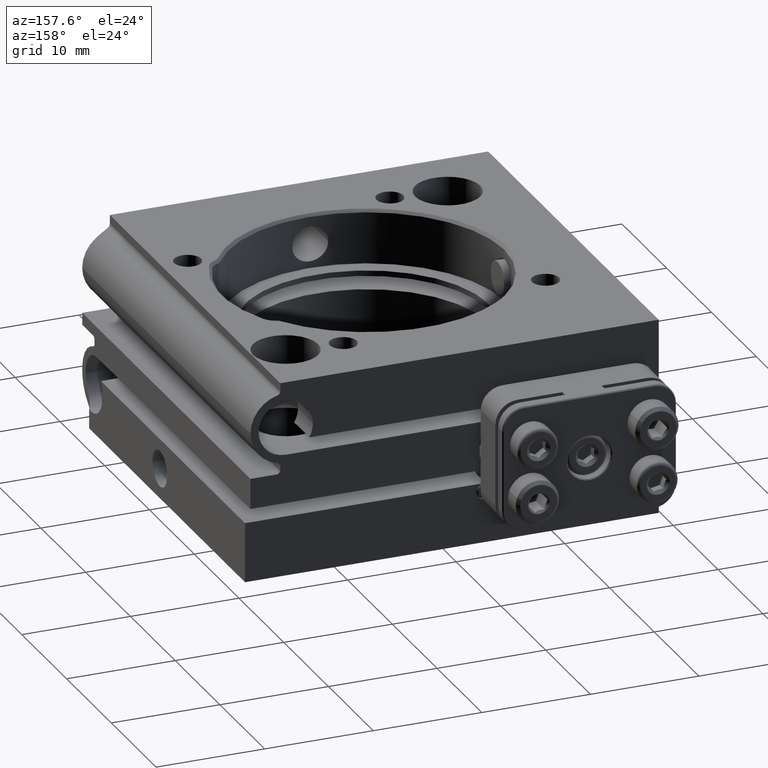
[diagram: clean part render]
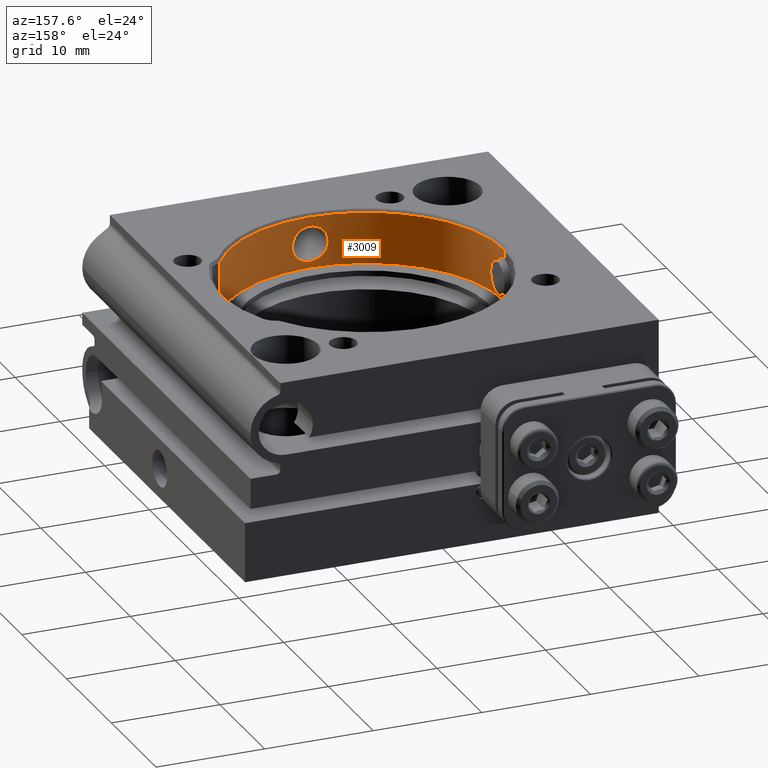
[diagram: same view with one face highlighted and labeled with its STEP entity id]
A machine part, auxiliary view. The second image highlights one B-rep face of the part: STEP entity #3009.
In plain terms, the highlighted cylindrical surface (partial cylindrical patch) has radius 12.7 mm, axis along (-0, 0, 1).
Its self-contained STEP definition (entity closure, byte-faithful):
#63 = CARTESIAN_POINT ( 'NONE',  ( 0.5311616262679677014, -12.68928159221445284, 4.684097174986618484 ) ) ;
#525 = VECTOR ( 'NONE', #8712, 1000.000000000000000 ) ;
#532 = CARTESIAN_POINT ( 'NONE',  ( 10.68890632383385864, -6.858373101567491581, 8.749999999999991118 ) ) ;
#559 = LINE ( 'NONE', #9541, #6747 ) ;
#838 = CARTESIAN_POINT ( 'NONE',  ( 1.650000000000000355, -12.59235879412590364, 6.250000000000000000 ) ) ;
#892 = CARTESIAN_POINT ( 'NONE',  ( 1.014406720461859424, -12.66034382637076661, 7.568984635073435996 ) ) ;
#917 = CARTESIAN_POINT ( 'NONE',  ( -0.7330152324979363199, -12.67922272649975390, 4.767810236534263169 ) ) ;
#948 = CARTESIAN_POINT ( 'NONE',  ( -0.5312243219149984652, -12.68927961344342492, 7.815887960319315653 ) ) ;
#967 = ORIENTED_EDGE ( 'NONE', *, *, #3142, .F. ) ;
#972 = CARTESIAN_POINT ( 'NONE',  ( -0.8276778359149603581, -12.67331870186633758, 4.818549915335562872 ) ) ;
#1154 = CARTESIAN_POINT ( 'NONE',  ( -12.65333819131141802, -1.090346758166675700, 5.006945348882484659 ) ) ;
#1158 = CARTESIAN_POINT ( 'NONE',  ( -1.649999999999994804, -12.59235879412590009, 6.357744893689425858 ) ) ;
#1223 = FACE_BOUND ( 'NONE', #4678, .T. ) ;
#1507 = CARTESIAN_POINT ( 'NONE',  ( -1.319493642687158852, -12.63219032994334157, 5.236246117921350418 ) ) ;
#1741 = B_SPLINE_CURVE_WITH_KNOTS ( 'NONE', 3,
 ( #1750, #3384, #6738, #3326, #9269, #4954, #10102, #9321, #5108, #9992, #4295, #7613, #2509, #5805 ),
 .UNSPECIFIED., .F., .F.,
 ( 4, 2, 2, 2, 2, 2, 4 ),
 ( 0.000000000000000000, 0.0003228325286193441004, 0.0006456650572386882008, 0.0009684975858580322471, 0.001291330114477376402, 0.001936995171716066012, 0.002582660228954755839 ),
 .UNSPECIFIED. ) ;
#1750 = CARTESIAN_POINT ( 'NONE',  ( -12.59235879412590364, -1.650000000000000577, 6.249999999999998224 ) ) ;
#1814 = ORIENTED_EDGE ( 'NONE', *, *, #2251, .T. ) ;
#1906 = CARTESIAN_POINT ( 'NONE',  ( -12.70000000000000639, -0.1090229725485052231, 4.600000000000000533 ) ) ;
#2013 = CARTESIAN_POINT ( 'NONE',  ( -1.565705511002873029, -12.60318627030674854, 6.781747223945730596 ) ) ;
#2044 = B_SPLINE_CURVE_WITH_KNOTS ( 'NONE', 3,
 ( #7667, #1906, #10319, #4401, #8713, #4567, #6177, #8768, #1154, #2938, #7883, #9599, #4349, #10259 ),
 .UNSPECIFIED., .F., .F.,
 ( 4, 2, 2, 2, 2, 2, 4 ),
 ( 0.007746681425112714181, 0.008069217373647116776, 0.008391753322181519370, 0.008714289270715921965, 0.009036825219250324559, 0.009681897116319131483, 0.01032696901338793667 ),
 .UNSPECIFIED. ) ;
#2218 = CIRCLE ( 'NONE', #10421, 12.69999999999999929 ) ;
#2251 = EDGE_CURVE ( 'NONE', #4929, #6469, #2044, .T. ) ;
#2353 = CARTESIAN_POINT ( 'NONE',  ( -12.69999999999999929, 1.058875209736242814E-15, 3.999999999999999112 ) ) ;
#2481 = CARTESIAN_POINT ( 'NONE',  ( 1.005068610256434125, -12.66048675011383118, 4.937003471603636839 ) ) ;
#2509 = CARTESIAN_POINT ( 'NONE',  ( -12.69999999999999929, -0.2155474377481002846, 7.899999999999997691 ) ) ;
#2591 = CARTESIAN_POINT ( 'NONE',  ( 1.606050984636598455, -12.59831351228890739, 5.814954567856689849 ) ) ;
#2646 = CARTESIAN_POINT ( 'NONE',  ( 0.7309145808882552275, -12.67934398441721378, 4.766777762420792541 ) ) ;
#2698 = LINE ( 'NONE', #7423, #2950 ) ;
#2768 = ORIENTED_EDGE ( 'NONE', *, *, #8530, .T. ) ;
#2830 = DIRECTION ( 'NONE',  ( -9.244463733058732095E-33, 5.551115123125781470E-17, 1.000000000000000000 ) ) ;
#2938 = CARTESIAN_POINT ( 'NONE',  ( -12.63231344381652477, -1.318313621317408924, 5.234759698058224053 ) ) ;
#2950 = VECTOR ( 'NONE', #3302, 1000.000000000000000 ) ;
#3009 = ADVANCED_FACE ( 'NONE', ( #1223, #3767 ), #8836, .F. ) ;
#3081 = CARTESIAN_POINT ( 'NONE',  ( -1.649999999999995248, -12.59235879412590542, 6.250000000000000000 ) ) ;
#3142 = EDGE_CURVE ( 'NONE', #7710, #9769, #2218, .T. ) ;
#3165 = DIRECTION ( 'NONE',  ( -9.244463733058732095E-33, 5.551115123125781470E-17, 1.000000000000000000 ) ) ;
#3211 = CARTESIAN_POINT ( 'NONE',  ( -12.69999999999999929, 1.143529696032970680E-15, 7.899999999999997691 ) ) ;
#3216 = DIRECTION ( 'NONE',  ( -1.000000000000000000, 5.551115123125783935E-17, 0.000000000000000000 ) ) ;
#3261 = EDGE_CURVE ( 'NONE', #6469, #5659, #1741, .T. ) ;
#3265 = ORIENTED_EDGE ( 'NONE', *, *, #8573, .T. ) ;
#3302 = DIRECTION ( 'NONE',  ( -9.244463733058732095E-33, 5.551115123125781470E-17, 1.000000000000000000 ) ) ;
#3326 = CARTESIAN_POINT ( 'NONE',  ( -12.59917469529604261, -1.597261876748875098, 6.677594368673273273 ) ) ;
#3327 = CARTESIAN_POINT ( 'NONE',  ( 1.597286510357107225, -12.59917155571188552, 6.677495938306177159 ) ) ;
#3356 = CARTESIAN_POINT ( 'NONE',  ( -1.006736397357105073, -12.66035304979194720, 4.938290515705884509 ) ) ;
#3384 = CARTESIAN_POINT ( 'NONE',  ( -12.59235879412590187, -1.650000000000000577, 6.359169316962908880 ) ) ;
#3385 = CARTESIAN_POINT ( 'NONE',  ( 0.2161003498384270471, -12.69998966641368199, 7.899920462693925671 ) ) ;
#3410 = CARTESIAN_POINT ( 'NONE',  ( 0.2151948122942981823, -12.69861548994357925, 4.610559371020976904 ) ) ;
#3454 = ORIENTED_EDGE ( 'NONE', *, *, #7546, .T. ) ;
#3463 = CARTESIAN_POINT ( 'NONE',  ( -0.2175778763345611322, -12.69857432432735500, 4.610876449858088755 ) ) ;
#3767 = FACE_OUTER_BOUND ( 'NONE', #4686, .T. ) ;
#3768 = CARTESIAN_POINT ( 'NONE',  ( 10.68890632383385864, -6.858373101567492469, 3.999999999999999112 ) ) ;
#3924 = VERTEX_POINT ( 'NONE', #8867 ) ;
#4140 = CARTESIAN_POINT ( 'NONE',  ( 1.650000000000001021, -12.59235879412590542, 6.359143648969181939 ) ) ;
#4169 = CARTESIAN_POINT ( 'NONE',  ( 1.089881095057642524, -12.65337867941391714, 5.006532768227636154 ) ) ;
#4194 = CARTESIAN_POINT ( 'NONE',  ( 0.8304684596129208174, -12.67437697549796560, 7.691876852467583348 ) ) ;
#4216 = CARTESIAN_POINT ( 'NONE',  ( -1.091517683395965443, -12.65323725961405188, 5.007963668621470354 ) ) ;
#4245 = CARTESIAN_POINT ( 'NONE',  ( -0.7311407799492911641, -12.67933158917456637, 7.733117508615616309 ) ) ;
#4295 = CARTESIAN_POINT ( 'NONE',  ( -12.67440102905318255, -0.8301179053685386888, 7.692086281326890429 ) ) ;
#4349 = CARTESIAN_POINT ( 'NONE',  ( -12.59235879412590542, -1.650000000000000355, 6.031861949611632134 ) ) ;
#4401 = CARTESIAN_POINT ( 'NONE',  ( -12.69325199066958731, -0.4271837322646028223, 4.652633860148979394 ) ) ;
#4462 = CARTESIAN_POINT ( 'NONE',  ( -1.243584559626344399, -12.63920373211304948, 7.339881464345636708 ) ) ;
#4521 = CARTESIAN_POINT ( 'NONE',  ( -1.006254112363643483, -12.66038995593008742, 7.562058369818206671 ) ) ;
#4567 = CARTESIAN_POINT ( 'NONE',  ( -12.67930161628875574, -0.7316394116476498954, 4.767139123526303202 ) ) ;
#4671 = DIRECTION ( 'NONE',  ( -1.000000000000000000, 5.551115123125783935E-17, 0.000000000000000000 ) ) ;
#4678 = EDGE_LOOP ( 'NONE', ( #5169, #3454 ) ) ;
#4686 = EDGE_LOOP ( 'NONE', ( #967, #2768, #1814, #9307, #8594, #5988, #3265 ) ) ;
#4929 = VERTEX_POINT ( 'NONE', #9638 ) ;
#4954 = CARTESIAN_POINT ( 'NONE',  ( -12.61323911144756771, -1.482546086641888250, 6.982295904051606605 ) ) ;
#5009 = CARTESIAN_POINT ( 'NONE',  ( 1.312164454234892252, -12.63217528426953251, 7.256153960545157489 ) ) ;
#5060 = CARTESIAN_POINT ( 'NONE',  ( -0.4283100644024917525, -12.69321722199674518, 7.847091472478155971 ) ) ;
#5108 = CARTESIAN_POINT ( 'NONE',  ( -12.63931957206295387, -1.242351484001327000, 7.341159184870074128 ) ) ;
#5128 = CARTESIAN_POINT ( 'NONE',  ( 1.650000000000000355, -12.59235879412590364, 6.250000000000000000 ) ) ;
#5169 = ORIENTED_EDGE ( 'NONE', *, *, #9915, .T. ) ;
#5352 = VERTEX_POINT ( 'NONE', #532 ) ;
#5642 = CARTESIAN_POINT ( 'NONE',  ( -3.697785493223491743E-32, 2.220446049250312095E-16, 3.999999999999999112 ) ) ;
#5659 = VERTEX_POINT ( 'NONE', #3211 ) ;
#5805 = CARTESIAN_POINT ( 'NONE',  ( -12.69999999999999929, 1.143529696032970680E-15, 7.899999999999997691 ) ) ;
#5807 = CARTESIAN_POINT ( 'NONE',  ( 1.482623108224797148, -12.61322999643037157, 6.982136365028319247 ) ) ;
#5830 = CARTESIAN_POINT ( 'NONE',  ( -0.4285072625778418298, -12.69320729873479081, 4.652987892713982276 ) ) ;
#5988 = ORIENTED_EDGE ( 'NONE', *, *, #6984, .T. ) ;
#6022 = CARTESIAN_POINT ( 'NONE',  ( -1.311757886897385594, -12.63221680210501141, 7.256645194578976721 ) ) ;
#6141 = CARTESIAN_POINT ( 'NONE',  ( -3.697785493223491743E-32, 2.220446049250312095E-16, 3.999999999999999112 ) ) ;
#6177 = CARTESIAN_POINT ( 'NONE',  ( -12.67340726605156220, -0.8263320994499013805, 4.817767958084288260 ) ) ;
#6469 = VERTEX_POINT ( 'NONE', #9445 ) ;
#6628 = CARTESIAN_POINT ( 'NONE',  ( 1.565499735732718056, -12.60321200334715996, 6.782358446406015595 ) ) ;
#6656 = CARTESIAN_POINT ( 'NONE',  ( -0.1102443621169531818, -12.69998998278592772, 4.600077102211884927 ) ) ;
#6681 = CARTESIAN_POINT ( 'NONE',  ( -0.1071379496298573986, -12.70000514495182031, 7.900039600540913476 ) ) ;
#6738 = CARTESIAN_POINT ( 'NONE',  ( -12.59377759619026094, -1.639272510353244172, 6.466490378161732444 ) ) ;
#6747 = VECTOR ( 'NONE', #9653, 1000.000000000000000 ) ;
#6849 = CARTESIAN_POINT ( 'NONE',  ( -1.431223159885970153, -12.61923969008543978, 7.078035970361468365 ) ) ;
#6952 = LINE ( 'NONE', #8767, #525 ) ;
#6957 = CARTESIAN_POINT ( 'NONE',  ( -1.639199399250330424, -12.59378732609830109, 6.467196931239918456 ) ) ;
#6984 = EDGE_CURVE ( 'NONE', #3924, #5352, #7941, .T. ) ;
#7132 = DIRECTION ( 'NONE',  ( -9.244463733058732095E-33, 5.551115123125781470E-17, 1.000000000000000000 ) ) ;
#7155 = CARTESIAN_POINT ( 'NONE',  ( -1.606689924120442647, -12.59823038229178849, 5.817283573040099576 ) ) ;
#7270 = AXIS2_PLACEMENT_3D ( 'NONE', #6141, #7132, #8783 ) ;
#7289 = VERTEX_POINT ( 'NONE', #9309 ) ;
#7370 = CARTESIAN_POINT ( 'NONE',  ( -1.649999999999995026, -12.59235879412590364, 6.034562079009769597 ) ) ;
#7423 = CARTESIAN_POINT ( 'NONE',  ( -12.69999999999999929, 9.270362255620056718E-16, 3.999999999999999112 ) ) ;
#7460 = CARTESIAN_POINT ( 'NONE',  ( 1.639277506042408294, -12.59377692928581105, 6.466439903022631164 ) ) ;
#7484 = CARTESIAN_POINT ( 'NONE',  ( -0.5332611341427095919, -12.68919354577250225, 4.684806596995290562 ) ) ;
#7513 = CARTESIAN_POINT ( 'NONE',  ( 0.4334205845874644636, -12.69415834848063618, 7.856497219714224656 ) ) ;
#7546 = EDGE_CURVE ( 'NONE', #7289, #8803, #8588, .T. ) ;
#7598 = CARTESIAN_POINT ( 'NONE',  ( 1.650000000000000355, -12.59235879412590364, 6.250000000000000000 ) ) ;
#7613 = CARTESIAN_POINT ( 'NONE',  ( -12.69417615237315466, -0.4329307041532429734, 7.856636108459548851 ) ) ;
#7667 = CARTESIAN_POINT ( 'NONE',  ( -12.69999999999999929, 9.603429163007716882E-16, 4.599999999999999645 ) ) ;
#7710 = VERTEX_POINT ( 'NONE', #2353 ) ;
#7727 = CARTESIAN_POINT ( 'NONE',  ( -0.8275995522319392617, -12.67332238033932690, 7.681475981497503547 ) ) ;
#7775 = CARTESIAN_POINT ( 'NONE',  ( -1.596937464366990245, -12.59921603197587636, 6.678882166036091306 ) ) ;
#7833 = CARTESIAN_POINT ( 'NONE',  ( -1.089660780144396046, -12.65340321506497467, 7.493777933346765785 ) ) ;
#7883 = CARTESIAN_POINT ( 'NONE',  ( -12.61822716381608878, -1.441261439155612001, 5.418501965990617286 ) ) ;
#7941 = CIRCLE ( 'NONE', #8115, 12.69999999999999929 ) ;
#8115 = AXIS2_PLACEMENT_3D ( 'NONE', #10320, #2830, #4671 ) ;
#8304 = CARTESIAN_POINT ( 'NONE',  ( 1.441081037503624263, -12.61824823668170126, 5.418164838066805267 ) ) ;
#8339 = CARTESIAN_POINT ( 'NONE',  ( 1.242534987012182235, -12.63930134561088892, 7.340947831736299278 ) ) ;
#8435 = CARTESIAN_POINT ( 'NONE',  ( -1.649999999999995248, -12.59235879412590542, 6.250000000000000000 ) ) ;
#8456 = CARTESIAN_POINT ( 'NONE',  ( 1.649999999999999911, -12.59235879412590720, 6.031765241785051579 ) ) ;
#8530 = EDGE_CURVE ( 'NONE', #7710, #4929, #559, .T. ) ;
#8573 = EDGE_CURVE ( 'NONE', #5352, #9769, #6952, .T. ) ;
#8588 = B_SPLINE_CURVE_WITH_KNOTS ( 'NONE', 3,
 ( #3081, #7370, #7155, #9752, #1507, #4216, #3356, #972, #917, #7484, #5830, #3463, #6656, #9182, #3410, #10069, #63, #2646, #10016, #2481, #4169, #10129, #8304, #2591, #8456, #5128 ),
 .UNSPECIFIED., .F., .F.,
 ( 4, 2, 2, 2, 2, 2, 2, 2, 2, 2, 2, 2, 4 ),
 ( 0.005164105982846181608, 0.005809463861663900774, 0.006454821740481620808, 0.006777500679890479524, 0.007100179619299339107, 0.007422858558708196955, 0.007745537498117056538, 0.008068216437525914386, 0.008390895376934773969, 0.008713574316343631818, 0.009036253255752491401, 0.009681611134570212301, 0.01032696901338793147 ),
 .UNSPECIFIED. ) ;
#8594 = ORIENTED_EDGE ( 'NONE', *, *, #9159, .T. ) ;
#8712 = DIRECTION ( 'NONE',  ( 9.244463733058732095E-33, -5.551115123125781470E-17, -1.000000000000000000 ) ) ;
#8713 = CARTESIAN_POINT ( 'NONE',  ( -12.68924465416582059, -0.5320298978656754496, 4.684395709181435663 ) ) ;
#8767 = CARTESIAN_POINT ( 'NONE',  ( 10.68890632383385864, -6.858373101567492469, 3.999999999999999112 ) ) ;
#8768 = CARTESIAN_POINT ( 'NONE',  ( -12.66044392340221059, -1.005602372798410693, 4.937415820492438101 ) ) ;
#8783 = DIRECTION ( 'NONE',  ( -1.000000000000000000, 5.551115123125783935E-17, 0.000000000000000000 ) ) ;
#8803 = VERTEX_POINT ( 'NONE', #7598 ) ;
#8836 = CYLINDRICAL_SURFACE ( 'NONE', #7270, 12.69999999999999929 ) ;
#8867 = CARTESIAN_POINT ( 'NONE',  ( -12.69999999999999929, 1.204591981718294807E-15, 8.749999999999991118 ) ) ;
#9158 = CARTESIAN_POINT ( 'NONE',  ( 1.431924604892683695, -12.61916082365901737, 7.076869562374374034 ) ) ;
#9159 = EDGE_CURVE ( 'NONE', #5659, #3924, #2698, .T. ) ;
#9182 = CARTESIAN_POINT ( 'NONE',  ( 0.1079242162079949996, -12.70000991124799228, 4.599923713405953407 ) ) ;
#9269 = CARTESIAN_POINT ( 'NONE',  ( -12.60321702551919465, -1.565459801218428204, 6.782480798599435978 ) ) ;
#9270 = CARTESIAN_POINT ( 'NONE',  ( -1.482931726598318622, -12.61319354507340407, 6.981506904688457027 ) ) ;
#9307 = ORIENTED_EDGE ( 'NONE', *, *, #3261, .T. ) ;
#9309 = CARTESIAN_POINT ( 'NONE',  ( -1.649999999999995248, -12.59235879412590542, 6.250000000000000000 ) ) ;
#9321 = CARTESIAN_POINT ( 'NONE',  ( -12.63219140209311142, -1.312010530925167062, 7.256357514738095205 ) ) ;
#9445 = CARTESIAN_POINT ( 'NONE',  ( -12.59235879412590364, -1.650000000000000577, 6.249999999999998224 ) ) ;
#9541 = CARTESIAN_POINT ( 'NONE',  ( -12.69999999999999929, 9.270362255620056718E-16, 3.999999999999999112 ) ) ;
#9599 = CARTESIAN_POINT ( 'NONE',  ( -12.59830808826345994, -1.606089850182312428, 5.815144955531462934 ) ) ;
#9638 = CARTESIAN_POINT ( 'NONE',  ( -12.69999999999999929, 9.603429163007716882E-16, 4.599999999999999645 ) ) ;
#9653 = DIRECTION ( 'NONE',  ( -9.244463733058732095E-33, 5.551115123125781470E-17, 1.000000000000000000 ) ) ;
#9668 = B_SPLINE_CURVE_WITH_KNOTS ( 'NONE', 3,
 ( #838, #4140, #7460, #3327, #6628, #5807, #9158, #5009, #8339, #892, #4194, #7513, #3385, #6681, #10044, #5060, #948, #4245, #7727, #4521, #7833, #4462, #6022, #6849, #9270, #2013, #7775, #6957, #1158, #8435 ),
 .UNSPECIFIED., .F., .F.,
 ( 4, 2, 2, 2, 2, 2, 2, 2, 2, 2, 2, 2, 2, 2, 4 ),
 ( 0.000000000000000000, 0.0003227566239278866216, 0.0006455132478557732431, 0.0009682698717836599189, 0.001291026495711546486, 0.001936539743567319187, 0.002582052991423092105, 0.002904809615350978456, 0.003227566239278865240, 0.003550322863206751590, 0.003873079487134637941, 0.004195836111062523424, 0.004518592734990409775, 0.004841349358918296125, 0.005164105982846181608 ),
 .UNSPECIFIED. ) ;
#9752 = CARTESIAN_POINT ( 'NONE',  ( -1.442222103115135212, -12.61811620975398007, 5.420125657875088265 ) ) ;
#9769 = VERTEX_POINT ( 'NONE', #3768 ) ;
#9915 = EDGE_CURVE ( 'NONE', #8803, #7289, #9668, .T. ) ;
#9992 = CARTESIAN_POINT ( 'NONE',  ( -12.66036675742258133, -1.014129866282048598, 7.569205412519690590 ) ) ;
#10016 = CARTESIAN_POINT ( 'NONE',  ( 0.8256735646527244565, -12.67345062821346247, 4.817384922759304189 ) ) ;
#10044 = CARTESIAN_POINT ( 'NONE',  ( -0.2165958456120420650, -12.69859437873841301, 7.889279391194348179 ) ) ;
#10069 = CARTESIAN_POINT ( 'NONE',  ( 0.4262593641354854856, -12.69328354379433854, 4.652383857845594939 ) ) ;
#10102 = CARTESIAN_POINT ( 'NONE',  ( -12.61917225378502039, -1.431825017827191182, 7.077045463715588625 ) ) ;
#10129 = CARTESIAN_POINT ( 'NONE',  ( 1.318031943887149282, -12.63234431999605256, 5.234373087046357398 ) ) ;
#10259 = CARTESIAN_POINT ( 'NONE',  ( -12.59235879412590364, -1.650000000000000577, 6.249999999999998224 ) ) ;
#10319 = CARTESIAN_POINT ( 'NONE',  ( -12.69859735122231648, -0.2162344821681800033, 4.610699181182562612 ) ) ;
#10320 = CARTESIAN_POINT ( 'NONE',  ( -8.088905766426381825E-32, 4.857225732735053948E-16, 8.749999999999991118 ) ) ;
#10421 = AXIS2_PLACEMENT_3D ( 'NONE', #5642, #3165, #3216 ) ;